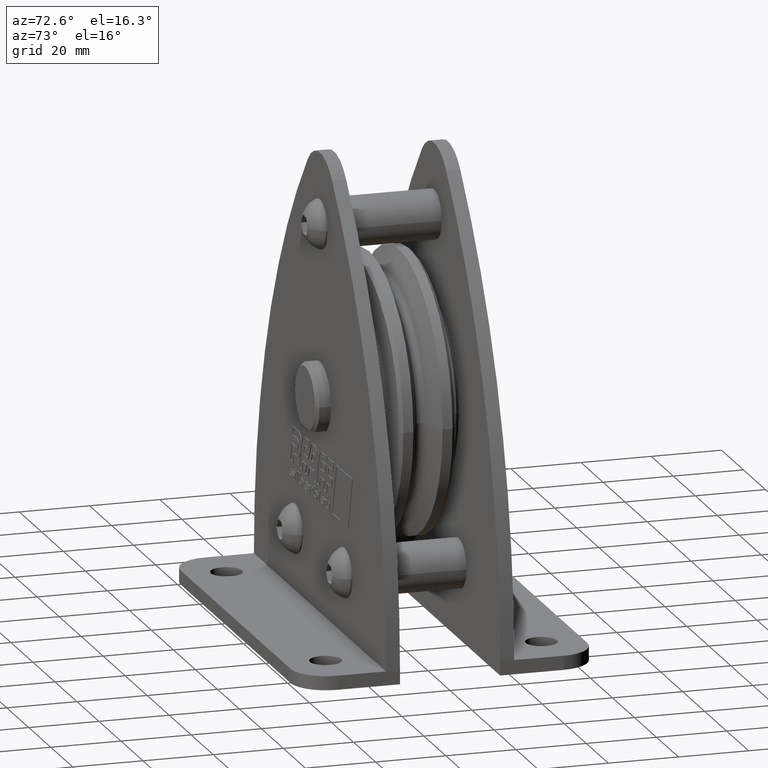
[diagram: clean part render]
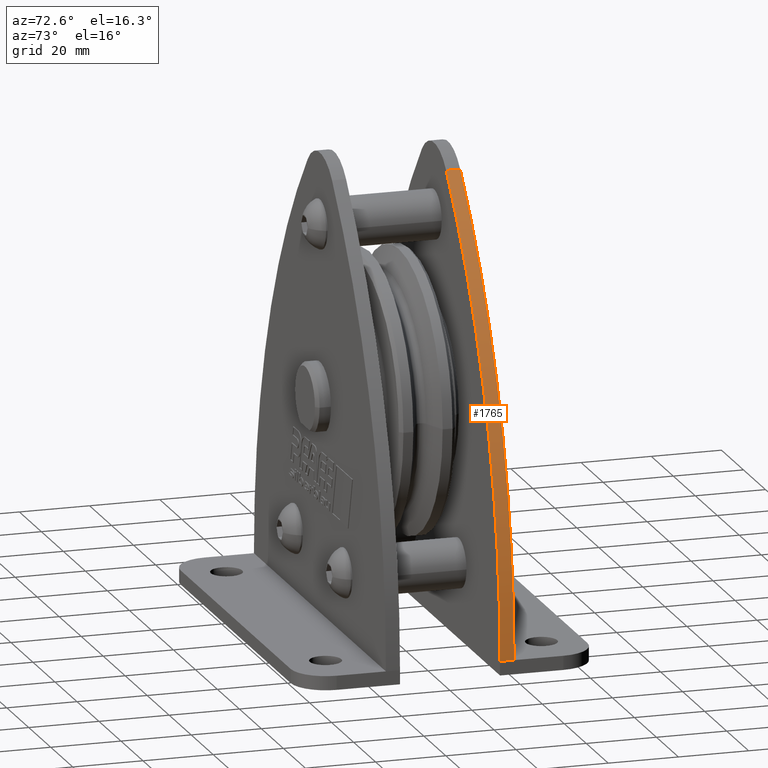
[diagram: same view with one face highlighted and labeled with its STEP entity id]
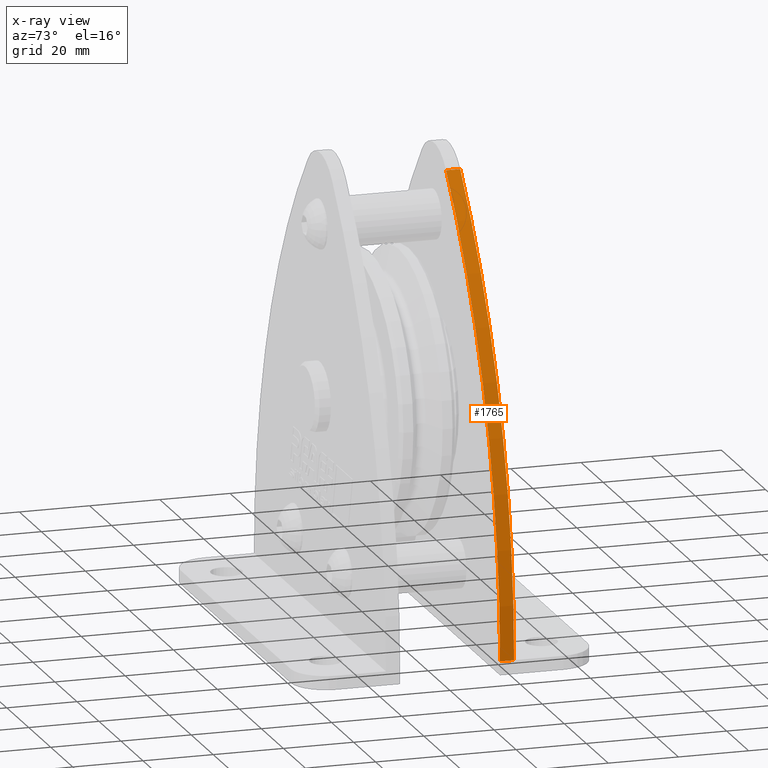
[diagram: x-ray of the same camera — body ghosted, the highlighted face saturated]
A machine part, auxiliary view. The second image highlights one B-rep face of the part: STEP entity #1765.
The next image is the same camera in x-ray: the body ghosted, the highlighted face saturated — about 0% of this face is hidden behind the body in this view.
In plain terms, the highlighted cylindrical surface (partial cylindrical patch) has radius 185 mm, axis along (-0, 1, 0).
Its self-contained STEP definition (entity closure, byte-faithful):
#1765=ADVANCED_FACE('',(#3707),#3708,.T.);
#3707=FACE_OUTER_BOUND('',#5777,.T.);
#3708=CYLINDRICAL_SURFACE('',#5778,184.9999999343);
#5777=EDGE_LOOP('',(#11387,#11388,#11389,#11390));
#5778=AXIS2_PLACEMENT_3D('',#11391,#11392,#11393);
#11387=ORIENTED_EDGE('',*,*,#14445,.T.);
#11388=ORIENTED_EDGE('',*,*,#14473,.F.);
#11389=ORIENTED_EDGE('',*,*,#14474,.T.);
#11390=ORIENTED_EDGE('',*,*,#14469,.T.);
#11391=CARTESIAN_POINT('',(-124.9999999343,14.25,-60.9999999807998));
#11392=DIRECTION('',(-0.0,1.0,0.0));
#11393=DIRECTION('',(0.735294117527686,0.0,0.67774815435321));
#14445=EDGE_CURVE('',#17928,#17933,#17935,.T.);
#14469=EDGE_CURVE('',#17969,#17928,#17970,.T.);
#14473=EDGE_CURVE('',#17975,#17933,#17976,.T.);
#14474=EDGE_CURVE('',#17975,#17969,#17977,.T.);
#17928=VERTEX_POINT('',#25841);
#17933=VERTEX_POINT('',#25847);
#17935=CIRCLE('',#25849,184.9999999343);
#17969=VERTEX_POINT('',#25895);
#17970=LINE('',#25896,#25897);
#17975=VERTEX_POINT('',#25904);
#17976=LINE('',#25905,#25906);
#17977=CIRCLE('',#25907,184.9999999343);
#25841=CARTESIAN_POINT('',(60.00000927,18.25,-60.9999999999251));
#25847=CARTESIAN_POINT('',(11.029411759994,18.25,64.383408530004));
#25849=AXIS2_PLACEMENT_3D('',#28894,#28895,#28896);
#25895=CARTESIAN_POINT('',(59.9999999999999,14.25,-60.9999999998503));
#25896=CARTESIAN_POINT('',(59.9999999999999,14.25,-60.9999999998503));
#25897=VECTOR('',#28921,1.0);
#25904=CARTESIAN_POINT('',(11.029411759994,14.25,64.383408530004));
#25905=CARTESIAN_POINT('',(11.029411759994,14.25,64.383408530004));
#25906=VECTOR('',#28924,1.0);
#25907=AXIS2_PLACEMENT_3D('',#28925,#28926,#28927);
#28894=CARTESIAN_POINT('',(-124.9999999343,18.25,-60.9999999807998));
#28895=DIRECTION('',(0.0,-1.0,0.0));
#28896=DIRECTION('',(0.735294117527686,0.0,0.67774815435321));
#28921=DIRECTION('',(0.0,1.0,0.0));
#28924=DIRECTION('',(0.0,1.0,0.0));
#28925=CARTESIAN_POINT('',(-124.9999999343,14.25,-60.9999999807998));
#28926=DIRECTION('',(-0.0,1.0,0.0));
#28927=DIRECTION('',(0.735294117527686,0.0,0.67774815435321));